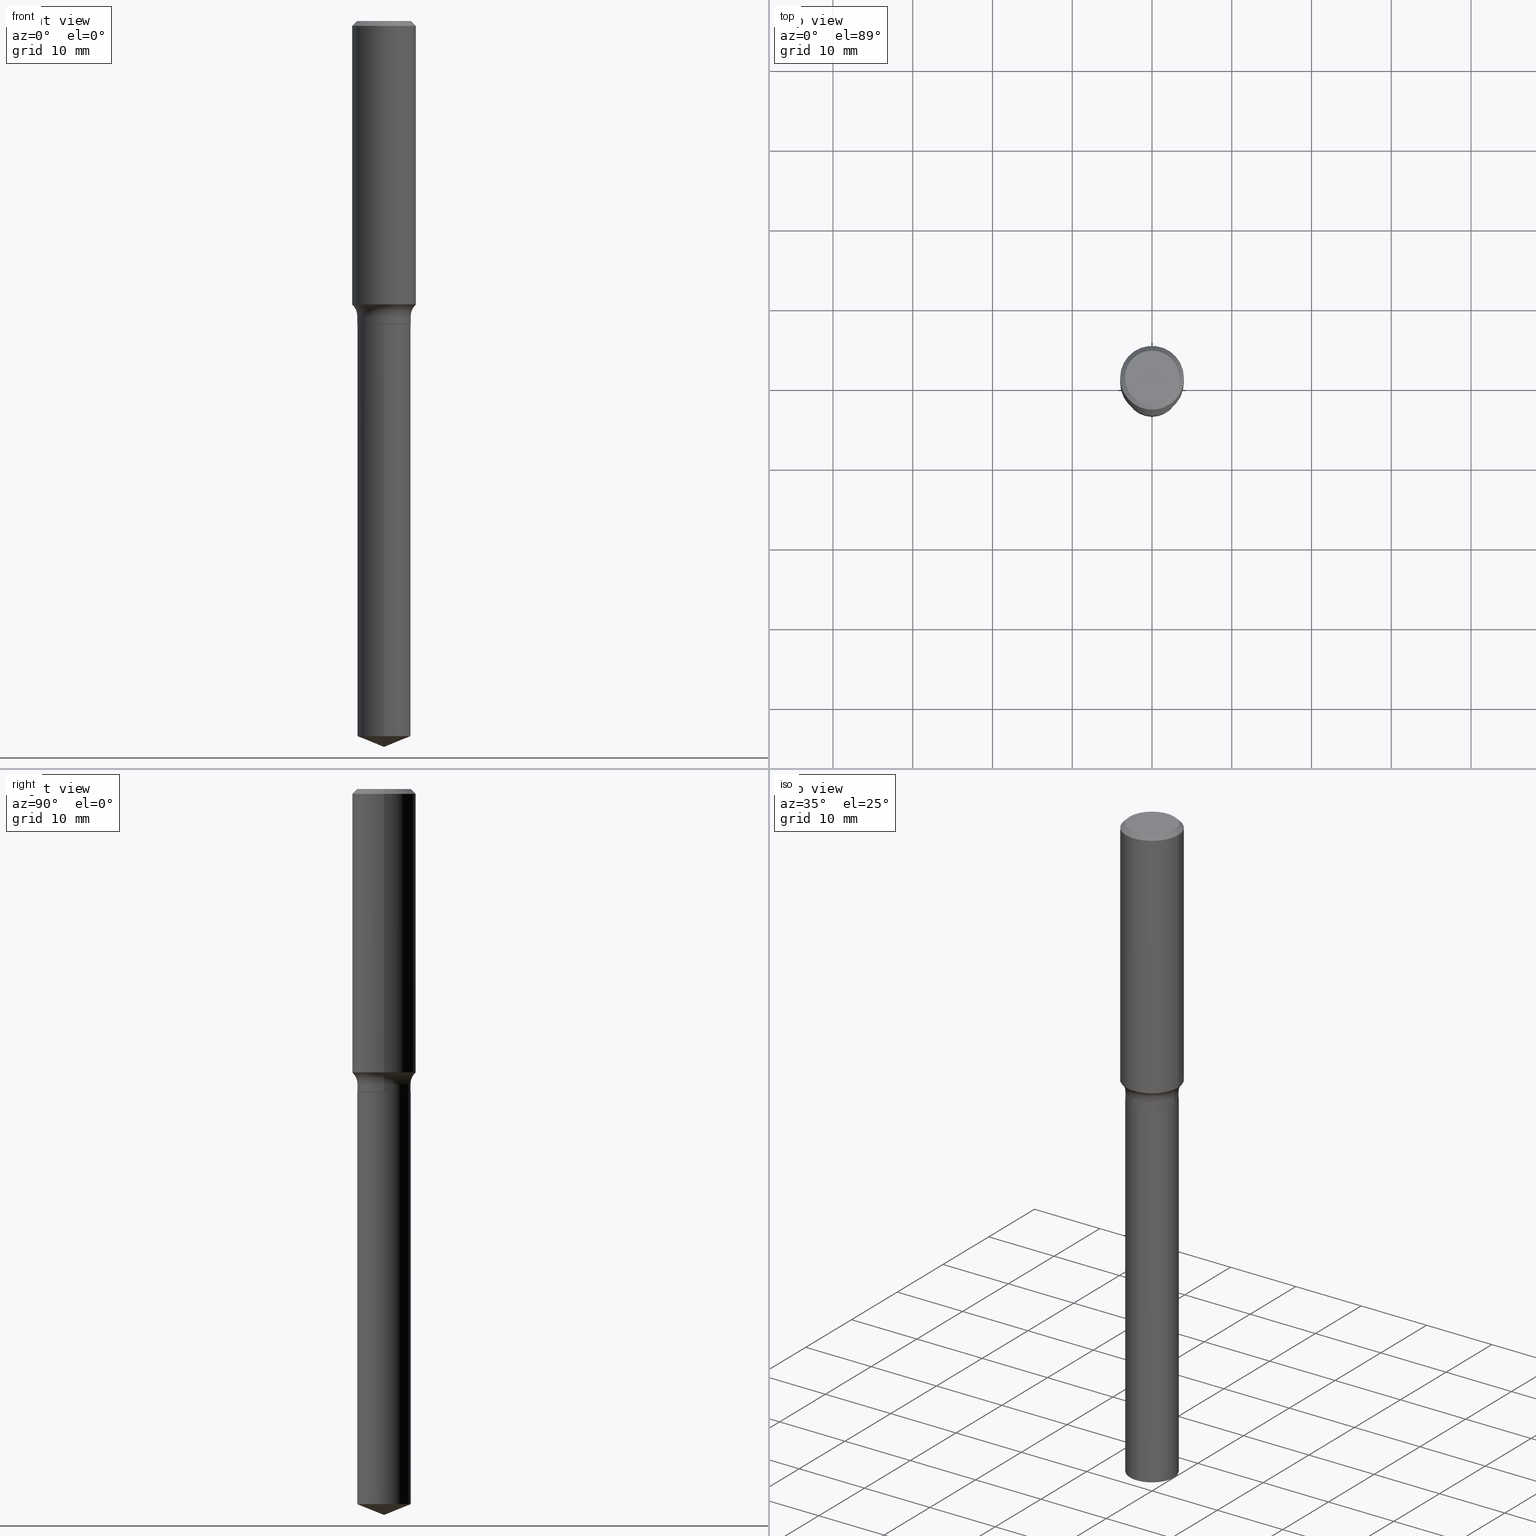
[diagram: canonical four-view strip — front | top / right | iso, engineering-drawing reading convention]
A machine part, canonical four-view strip (front | top / right | iso — engineering-drawing reading convention). The complete STEP part file that produces these views, byte-faithful:
ISO-10303-21;
HEADER;
FILE_DESCRIPTION (( 'STEP AP203' ),
    '1' );
FILE_NAME ('69260.STEP',
    '2024-04-19T17:33:28',
    ( '' ),
    ( '' ),
    'SwSTEP 2.0',
    'SolidWorks 2023',
    '' );
FILE_SCHEMA (( 'CONFIG_CONTROL_DESIGN' ));
ENDSEC;

DATA;
#1 = LINE ( 'NONE', #230, #196 ) ;
#2 = EDGE_LOOP ( 'NONE', ( #476, #255, #263, #100 ) ) ;
#3 = CARTESIAN_POINT ( 'NONE',  ( -1.002970424325032604E-46, 1.431975951230895391E-32, 4.101342130344482109E-18 ) ) ;
#4 = LINE ( 'NONE', #66, #317 ) ;
#5 = EDGE_CURVE ( 'NONE', #181, #278, #190, .T. ) ;
#6 = PRODUCT_RELATED_PRODUCT_CATEGORY ( 'detail', '', ( #173 ) ) ;
#7 = AXIS2_PLACEMENT_3D ( 'NONE', #121, #13, #77 ) ;
#8 = CARTESIAN_POINT ( 'NONE',  ( 8.631745927395342722E-29, -1.232398046609594419E-14, -3.529708940812342988 ) ) ;
#9 = ORIENTED_EDGE ( 'NONE', *, *, #369, .F. ) ;
#10 = PLANE ( 'NONE',  #336 ) ;
#11 = ORIENTED_EDGE ( 'NONE', *, *, #38, .T. ) ;
#12 = EDGE_CURVE ( 'NONE', #249, #84, #26, .T. ) ;
#13 = DIRECTION ( 'NONE',  ( -2.445468806185136597E-29, 3.491481338843145583E-15, 1.000000000000000000 ) ) ;
#14 = ORIENTED_EDGE ( 'NONE', *, *, #415, .T. ) ;
#15 = CIRCLE ( 'NONE', #366, 0.1318999999999999895 ) ;
#16 = FACE_OUTER_BOUND ( 'NONE', #45, .T. ) ;
#17 = DIRECTION ( 'NONE',  ( -0.7071067811864267805, 7.493145998869918709E-15, 0.7071067811866682540 ) ) ;
#18 = EDGE_CURVE ( 'NONE', #195, #181, #169, .T. ) ;
#19 = VERTEX_POINT ( 'NONE', #75 ) ;
#20 = APPROVAL ( #449, 'UNSPECIFIED' ) ;
#21 = DATE_AND_TIME ( #296, #197 ) ;
#22 = CIRCLE ( 'NONE', #223, 0.1318999999999999895 ) ;
#23 = EDGE_CURVE ( 'NONE', #19, #435, #86, .T. ) ;
#24 = EDGE_LOOP ( 'NONE', ( #305, #235, #355, #127 ) ) ;
#25 = SECURITY_CLASSIFICATION_LEVEL ( 'unclassified' ) ;
#26 = CIRCLE ( 'NONE', #231, 0.1313999999999999890 ) ;
#27 = LOCAL_TIME ( 13, 33, 28.00000000000000000, #484 ) ;
#28 = APPROVAL_STATUS ( 'not_yet_approved' ) ;
#29 = ORIENTED_EDGE ( 'NONE', *, *, #12, .T. ) ;
#30 = ORIENTED_EDGE ( 'NONE', *, *, #93, .T. ) ;
#31 = CARTESIAN_POINT ( 'NONE',  ( -0.1318999999999999895, -4.216744309865738217E-15, -1.456400000000000139 ) ) ;
#32 = PLANE ( 'NONE',  #490 ) ;
#33 = DIRECTION ( 'NONE',  ( -2.445468806185136597E-29, 3.491481338843145583E-15, 1.000000000000000000 ) ) ;
#34 = DIRECTION ( 'NONE',  ( 1.000000000000000000, -6.982962677686269077E-15, 0.000000000000000000 ) ) ;
#35 = DIRECTION ( 'NONE',  ( 1.000000000000000000, -6.982962677686266711E-15, 4.876170806578254279E-29 ) ) ;
#36 = CARTESIAN_POINT ( 'NONE',  ( 0.1575000000000001676, -5.983080965653135818E-15, -1.398622495727142923 ) ) ;
#37 = ORIENTED_EDGE ( 'NONE', *, *, #430, .T. ) ;
#38 = EDGE_CURVE ( 'NONE', #418, #290, #119, .T. ) ;
#39 = DIRECTION ( 'NONE',  ( -2.445468806185136597E-29, 3.491481338843145583E-15, 1.000000000000000000 ) ) ;
#40 = DIRECTION ( 'NONE',  ( -2.445445601509706497E-29, 3.491514569259089389E-15, 1.000000000000000000 ) ) ;
#41 = CYLINDRICAL_SURFACE ( 'NONE', #57, 0.1318999999999999895 ) ;
#42 = EDGE_LOOP ( 'NONE', ( #485, #162 ) ) ;
#43 = CIRCLE ( 'NONE', #244, 0.1575000000000001676 ) ;
#44 = CARTESIAN_POINT ( 'NONE',  ( 5.777420054612421980E-31, -8.248624663016985234E-17, -0.02362500000000015282 ) ) ;
#45 = EDGE_LOOP ( 'NONE', ( #432, #14, #280 ) ) ;
#46 = DIRECTION ( 'NONE',  ( 2.438088387897960049E-29, -3.491481338843145188E-15, -1.000000000000000000 ) ) ;
#47 = LINE ( 'NONE', #49, #97 ) ;
#48 = UNCERTAINTY_MEASURE_WITH_UNIT (LENGTH_MEASURE( 1.000000000000000082E-05 ), #167, 'distance_accuracy_value', 'NONE');
#49 = CARTESIAN_POINT ( 'NONE',  ( -0.1313999999999999890, -4.290999520656112771E-15, -1.496400000000000396 ) ) ;
#50 = CONICAL_SURFACE ( 'NONE', #347, 0.1313999999999999890, 0.7853981633972775267 ) ;
#51 = EDGE_LOOP ( 'NONE', ( #115, #372, #155, #391 ) ) ;
#52 = CARTESIAN_POINT ( 'NONE',  ( -0.1318999999999999895, -4.216744309865738217E-15, -1.495900000000000230 ) ) ;
#53 = ADVANCED_FACE ( 'NONE', ( #358 ), #423, .T. ) ;
#54 =( NAMED_UNIT ( * ) PLANE_ANGLE_UNIT ( ) SI_UNIT ( $, .RADIAN. ) );
#55 = PERSON_AND_ORGANIZATION_ROLE ( 'classification_officer' ) ;
#56 = CARTESIAN_POINT ( 'NONE',  ( -0.1575000000000000844, 1.119104808822158392E-15, -7.747322767151481189E-30 ) ) ;
#57 = AXIS2_PLACEMENT_3D ( 'NONE', #390, #39, #460 ) ;
#58 = APPROVAL_PERSON_ORGANIZATION ( #452, #370, #101 ) ;
#59 = DIRECTION ( 'NONE',  ( -6.982962677686266711E-15, -1.000000000000000000, 3.491481338843145583E-15 ) ) ;
#60 = PERSON_AND_ORGANIZATION_ROLE ( 'creator' ) ;
#61 = ORIENTED_EDGE ( 'NONE', *, *, #282, .T. ) ;
#62 = PERSON_AND_ORGANIZATION ( #456, #109 ) ;
#63 = PERSON_AND_ORGANIZATION_ROLE ( 'design_supplier' ) ;
#64 = DIRECTION ( 'NONE',  ( 1.000000000000000000, -6.982962677686265922E-15, 0.000000000000000000 ) ) ;
#65 = AXIS2_PLACEMENT_3D ( 'NONE', #8, #332, #281 ) ;
#66 = CARTESIAN_POINT ( 'NONE',  ( 8.762031590209278139E-29, -1.251009670165531742E-14, -3.583000000000000185 ) ) ;
#67 = DIRECTION ( 'NONE',  ( 1.000000000000000000, -6.982962677686268288E-15, 0.000000000000000000 ) ) ;
#68 = CARTESIAN_POINT ( 'NONE',  ( 0.2099000000000000032, -6.550717287937504794E-15, -1.456400000000000139 ) ) ;
#69 = ADVANCED_FACE ( 'NONE', ( #315 ), #462, .T. ) ;
#70 = CARTESIAN_POINT ( 'NONE',  ( 0.1575000000000000011, -1.182302868365756679E-15, -0.02362500000000015282 ) ) ;
#71 = ADVANCED_FACE ( 'NONE', ( #219 ), #242, .F. ) ;
#72 = DIRECTION ( 'NONE',  ( 1.000000000000000000, -6.982962677686265922E-15, 4.876176775795935793E-29 ) ) ;
#73 = EDGE_LOOP ( 'NONE', ( #325, #320, #82, #465 ) ) ;
#74 = FACE_OUTER_BOUND ( 'NONE', #160, .T. ) ;
#75 = CARTESIAN_POINT ( 'NONE',  ( 0.1338749999999999940, -1.040731925365424925E-15, 4.101342130351390035E-18 ) ) ;
#76 = ORIENTED_EDGE ( 'NONE', *, *, #216, .T. ) ;
#77 = DIRECTION ( 'NONE',  ( 1.000000000000000000, -6.982962677686269077E-15, 0.000000000000000000 ) ) ;
#78 = EDGE_CURVE ( 'NONE', #278, #150, #489, .T. ) ;
#79 = ORIENTED_EDGE ( 'NONE', *, *, #430, .F. ) ;
#80 = AXIS2_PLACEMENT_3D ( 'NONE', #326, #126, #439 ) ;
#81 = CARTESIAN_POINT ( 'NONE',  ( 0.1318999999999999895, -6.143959711962281051E-15, -1.495900000000000230 ) ) ;
#82 = ORIENTED_EDGE ( 'NONE', *, *, #105, .T. ) ;
#83 = FACE_OUTER_BOUND ( 'NONE', #137, .T. ) ;
#84 = VERTEX_POINT ( 'NONE', #345 ) ;
#85 = ADVANCED_FACE ( 'NONE', ( #268 ), #32, .F. ) ;
#86 = CIRCLE ( 'NONE', #159, 0.1338749999999999940 ) ;
#87 = DIRECTION ( 'NONE',  ( 1.000000000000000000, -6.982962677686267499E-15, 4.876176775795936353E-29 ) ) ;
#88 = AXIS2_PLACEMENT_3D ( 'NONE', #436, #466, #201 ) ;
#89 = CC_DESIGN_PERSON_AND_ORGANIZATION_ASSIGNMENT ( #62, #63, ( #328 ) ) ;
#90 = AXIS2_PLACEMENT_3D ( 'NONE', #480, #172, #342 ) ;
#91 = CARTESIAN_POINT ( 'NONE',  ( 8.762031590209278139E-29, -1.251009670165531742E-14, -3.583000000000000185 ) ) ;
#92 = APPROVAL_DATE_TIME ( #209, #258 ) ;
#93 = EDGE_CURVE ( 'NONE', #290, #444, #194, .T. ) ;
#94 = PERSON_AND_ORGANIZATION_ROLE ( 'design_owner' ) ;
#95 = CLOSED_SHELL ( 'NONE', ( #450, #458, #53, #437, #193, #262, #71, #386, #138, #291, #129, #314 ) ) ;
#96 = DIRECTION ( 'NONE',  ( 1.000000000000000000, 0.000000000000000000, 0.000000000000000000 ) ) ;
#97 = VECTOR ( 'NONE', #17, 39.37007874015748143 ) ;
#98 = CIRCLE ( 'NONE', #90, 0.07800000000000002764 ) ;
#99 = PRODUCT_DEFINITION_SHAPE ( 'NONE', 'NONE',  #416 ) ;
#100 = ORIENTED_EDGE ( 'NONE', *, *, #275, .T. ) ;
#101 = APPROVAL_ROLE ( '' ) ;
#102 = PERSON_AND_ORGANIZATION_ROLE ( 'creator' ) ;
#103 = DIRECTION ( 'NONE',  ( -2.445468806185136597E-29, 3.491481338843145583E-15, 1.000000000000000000 ) ) ;
#104 = ORIENTED_EDGE ( 'NONE', *, *, #236, .T. ) ;
#105 = EDGE_CURVE ( 'NONE', #181, #124, #477, .T. ) ;
#106 = CARTESIAN_POINT ( 'NONE',  ( 5.777420054612421980E-31, -8.248624663016985234E-17, -0.02362500000000015282 ) ) ;
#107 = ORIENTED_EDGE ( 'NONE', *, *, #236, .F. ) ;
#108 = AXIS2_PLACEMENT_3D ( 'NONE', #198, #250, #161 ) ;
#109 = ORGANIZATION ( 'UNSPECIFIED', 'UNSPECIFIED', '' ) ;
#110 = CARTESIAN_POINT ( 'NONE',  ( 3.561580769328033122E-29, -5.084993421891157543E-15, -1.456400000000000139 ) ) ;
#111 = ADVANCED_BREP_SHAPE_REPRESENTATION ( '69260', ( #344, #340, #187 ), #409 ) ;
#112 = DIRECTION ( 'NONE',  ( 1.000000000000000000, -6.982962677686265922E-15, 0.000000000000000000 ) ) ;
#113 = EDGE_CURVE ( 'NONE', #226, #124, #15, .T. ) ;
#114 = DIRECTION ( 'NONE',  ( 1.000000000000000000, -6.982962677686267499E-15, 0.000000000000000000 ) ) ;
#115 = ORIENTED_EDGE ( 'NONE', *, *, #175, .T. ) ;
#116 = VECTOR ( 'NONE', #335, 39.37007874015748143 ) ;
#117 = ORIENTED_EDGE ( 'NONE', *, *, #369, .T. ) ;
#118 = CYLINDRICAL_SURFACE ( 'NONE', #434, 0.1318999999999999895 ) ;
#119 = LINE ( 'NONE', #151, #220 ) ;
#120 = ORIENTED_EDGE ( 'NONE', *, *, #5, .T. ) ;
#121 = CARTESIAN_POINT ( 'NONE',  ( 3.658176787172346501E-29, -5.222906934775461847E-15, -1.495900000000000230 ) ) ;
#122 = ORIENTED_EDGE ( 'NONE', *, *, #374, .T. ) ;
#123 = DIRECTION ( 'NONE',  ( 1.000000000000000000, -6.982962677686266711E-15, 4.876170806578254279E-29 ) ) ;
#124 = VERTEX_POINT ( 'NONE', #420 ) ;
#125 = AXIS2_PLACEMENT_3D ( 'NONE', #267, #189, #271 ) ;
#126 = DIRECTION ( 'NONE',  ( -2.445468806185136597E-29, 3.491481338843145583E-15, 1.000000000000000000 ) ) ;
#127 = ORIENTED_EDGE ( 'NONE', *, *, #400, .F. ) ;
#128 = DIRECTION ( 'NONE',  ( -2.445445601509706497E-29, 3.491514569259089389E-15, 1.000000000000000000 ) ) ;
#129 = ADVANCED_FACE ( 'NONE', ( #228 ), #357, .F. ) ;
#130 = CC_DESIGN_DATE_AND_TIME_ASSIGNMENT ( #380, #180, ( #410 ) ) ;
#131 = CARTESIAN_POINT ( 'NONE',  ( -5.014852121625163022E-47, 7.159879756154476955E-33, 2.050671065172241055E-18 ) ) ;
#132 = ORIENTED_EDGE ( 'NONE', *, *, #23, .T. ) ;
#133 = DIRECTION ( 'NONE',  ( -2.445445601509706497E-29, 3.491514569259089389E-15, 1.000000000000000000 ) ) ;
#134 = AXIS2_PLACEMENT_3D ( 'NONE', #378, #103, #303 ) ;
#135 = LINE ( 'NONE', #211, #253 ) ;
#136 = CIRCLE ( 'NONE', #408, 0.1318999999999999895 ) ;
#137 = EDGE_LOOP ( 'NONE', ( #428, #247, #120, #402 ) ) ;
#138 = ADVANCED_FACE ( 'NONE', ( #359 ), #177, .T. ) ;
#139 = PERSON_AND_ORGANIZATION ( #456, #109 ) ;
#140 = CARTESIAN_POINT ( 'NONE',  ( 9.372058684676580562E-16, 0.1318999999999876382, -3.529708940812343432 ) ) ;
#141 = MECHANICAL_CONTEXT ( 'NONE', #376, 'mechanical' ) ;
#142 = CONICAL_SURFACE ( 'NONE', #299, 97.44436430772807967, 1.186823891356143745 ) ;
#143 = CC_DESIGN_APPROVAL ( #370, ( #328 ) ) ;
#144 = COORDINATED_UNIVERSAL_TIME_OFFSET ( 5, 0, .BEHIND. ) ;
#145 = EDGE_CURVE ( 'NONE', #474, #418, #4, .T. ) ;
#146 = APPROVAL_DATE_TIME ( #174, #370 ) ;
#147 = DIMENSIONAL_EXPONENTS ( 1.000000000000000000, 0.000000000000000000, 0.000000000000000000, 0.000000000000000000, 0.000000000000000000, 0.000000000000000000, 0.000000000000000000 ) ;
#148 = DIRECTION ( 'NONE',  ( -1.000000000000000000, 6.982962677686265922E-15, 0.000000000000000000 ) ) ;
#149 = CARTESIAN_POINT ( 'NONE',  ( 3.659399521575438742E-29, -5.224652675444883351E-15, -1.496400000000000174 ) ) ;
#150 = VERTEX_POINT ( 'NONE', #154 ) ;
#151 = CARTESIAN_POINT ( 'NONE',  ( -9.210527771867817330E-16, -0.1319000000000052075, -1.496399999999999730 ) ) ;
#152 = CONICAL_SURFACE ( 'NONE', #108, 0.1313999999999999890, 0.7853981633972775267 ) ;
#153 = DIRECTION ( 'NONE',  ( -2.445445601509706497E-29, 3.491514569259089389E-15, 1.000000000000000000 ) ) ;
#154 = CARTESIAN_POINT ( 'NONE',  ( -0.1575000000000000011, -1.363770486451699292E-15, -0.02362500000000015282 ) ) ;
#155 = ORIENTED_EDGE ( 'NONE', *, *, #168, .F. ) ;
#156 = CARTESIAN_POINT ( 'NONE',  ( 0.000000000000000000, 0.000000000000000000, 0.000000000000000000 ) ) ;
#157 = CARTESIAN_POINT ( 'NONE',  ( 3.658176787172346501E-29, -5.222906934775461847E-15, -1.495900000000000230 ) ) ;
#158 = DIRECTION ( 'NONE',  ( -2.445445601509706497E-29, 3.491514569259089389E-15, 1.000000000000000000 ) ) ;
#159 = AXIS2_PLACEMENT_3D ( 'NONE', #3, #488, #35 ) ;
#160 = EDGE_LOOP ( 'NONE', ( #448, #37, #338, #229 ) ) ;
#161 = DIRECTION ( 'NONE',  ( 1.000000000000000000, -6.982962677686265133E-15, 0.000000000000000000 ) ) ;
#162 = ORIENTED_EDGE ( 'NONE', *, *, #333, .F. ) ;
#163 = FACE_OUTER_BOUND ( 'NONE', #207, .T. ) ;
#164 = CARTESIAN_POINT ( 'NONE',  ( 3.561580769328033122E-29, -5.084993421891157543E-15, -1.456400000000000139 ) ) ;
#165 = DIRECTION ( 'NONE',  ( -2.445468806185136597E-29, 3.491481338843145583E-15, 1.000000000000000000 ) ) ;
#166 = DIRECTION ( 'NONE',  ( 1.000000000000000000, -6.982962677686265922E-15, 4.883557194083112340E-29 ) ) ;
#167 =( CONVERSION_BASED_UNIT ( 'INCH', #337 ) LENGTH_UNIT ( ) NAMED_UNIT ( #147 ) );
#168 = EDGE_CURVE ( 'NONE', #124, #226, #136, .T. ) ;
#169 = CIRCLE ( 'NONE', #387, 0.1575000000000001676 ) ;
#170 =( LENGTH_UNIT ( ) NAMED_UNIT ( * ) SI_UNIT ( $, .METRE. ) );
#171 = APPROVAL_DATE_TIME ( #21, #20 ) ;
#172 = DIRECTION ( 'NONE',  ( 7.105427357601001859E-15, 1.000000000000000000, -3.491481338843145583E-15 ) ) ;
#173 = PRODUCT ( '69260', '69260', '', ( #141 ) ) ;
#174 = DATE_AND_TIME ( #257, #285 ) ;
#175 = EDGE_CURVE ( 'NONE', #398, #367, #472, .T. ) ;
#176 = DIRECTION ( 'NONE',  ( 0.000000000000000000, 0.000000000000000000, 1.000000000000000000 ) ) ;
#177 = CONICAL_SURFACE ( 'NONE', #362, 0.1575000000000000011, 0.7853981633974447263 ) ;
#178 = DIRECTION ( 'NONE',  ( 1.000000000000000000, -6.982962677686267499E-15, 0.000000000000000000 ) ) ;
#179 = CC_DESIGN_PERSON_AND_ORGANIZATION_ASSIGNMENT ( #218, #102, ( #328 ) ) ;
#180 = DATE_TIME_ROLE ( 'classification_date' ) ;
#181 = VERTEX_POINT ( 'NONE', #36 ) ;
#182 = CARTESIAN_POINT ( 'NONE',  ( 3.659399521575438742E-29, -5.224652675444883351E-15, -1.496400000000000174 ) ) ;
#183 = DIRECTION ( 'NONE',  ( 1.000000000000000000, -6.982962677686265133E-15, 0.000000000000000000 ) ) ;
#184 = DIRECTION ( 'NONE',  ( -6.982962677686265922E-15, -1.000000000000000000, 3.498761904101839785E-15 ) ) ;
#185 = AXIS2_PLACEMENT_3D ( 'NONE', #156, #191, #318 ) ;
#186 = AXIS2_PLACEMENT_3D ( 'NONE', #421, #272, #72 ) ;
#187 = AXIS2_PLACEMENT_3D ( 'NONE', #377, #176, #96 ) ;
#188 = DIRECTION ( 'NONE',  ( 2.445468806185136597E-29, -3.491481338843145583E-15, -1.000000000000000000 ) ) ;
#189 = DIRECTION ( 'NONE',  ( -2.438088387897960049E-29, 3.491481338843145188E-15, 1.000000000000000000 ) ) ;
#190 = LINE ( 'NONE', #381, #210 ) ;
#191 = DIRECTION ( 'NONE',  ( -2.445468806185136597E-29, 3.491481338843145583E-15, 1.000000000000000000 ) ) ;
#192 = CARTESIAN_POINT ( 'NONE',  ( 5.777420054612421980E-31, -8.248624663016985234E-17, -0.02362500000000015282 ) ) ;
#193 = ADVANCED_FACE ( 'NONE', ( #237 ), #316, .T. ) ;
#194 = CIRCLE ( 'NONE', #283, 0.1318999999999999895 ) ;
#195 = VERTEX_POINT ( 'NONE', #225 ) ;
#196 = VECTOR ( 'NONE', #277, 39.37007874015748143 ) ;
#197 = LOCAL_TIME ( 13, 33, 28.00000000000000000, #406 ) ;
#198 = CARTESIAN_POINT ( 'NONE',  ( 3.659399521575439863E-29, -5.224652675444884140E-15, -1.496400000000000396 ) ) ;
#199 = DIRECTION ( 'NONE',  ( -0.7071067811865450192, 2.468850131082230634E-15, -0.7071067811865500152 ) ) ;
#200 = ADVANCED_FACE ( 'NONE', ( #350 ), #142, .T. ) ;
#201 = DIRECTION ( 'NONE',  ( -6.982962677686265922E-15, -1.000000000000000000, 4.142301734138382417E-15 ) ) ;
#202 = EDGE_LOOP ( 'NONE', ( #9, #404, #233, #79 ) ) ;
#203 = VECTOR ( 'NONE', #199, 39.37007874015748143 ) ;
#204 = DIRECTION ( 'NONE',  ( -2.445468806185136597E-29, 3.491481338843145583E-15, 1.000000000000000000 ) ) ;
#205 = ORIENTED_EDGE ( 'NONE', *, *, #113, .T. ) ;
#206 = DIRECTION ( 'NONE',  ( -2.445468806185136597E-29, 3.491481338843145583E-15, 1.000000000000000000 ) ) ;
#207 = EDGE_LOOP ( 'NONE', ( #214, #132 ) ) ;
#208 = APPLICATION_PROTOCOL_DEFINITION ( 'international standard', 'config_control_design', 1994, #376 ) ;
#209 = DATE_AND_TIME ( #264, #440 ) ;
#210 = VECTOR ( 'NONE', #455, 39.37007874015748143 ) ;
#211 = CARTESIAN_POINT ( 'NONE',  ( 9.372058684676085552E-16, 0.1318999999999947437, -1.496400000000000841 ) ) ;
#212 = CIRCLE ( 'NONE', #252, 0.1575000000000000011 ) ;
#213 = APPROVAL_PERSON_ORGANIZATION ( #349, #20, #443 ) ;
#214 = ORIENTED_EDGE ( 'NONE', *, *, #356, .T. ) ;
#215 = CALENDAR_DATE ( 2024, 19, 4 ) ;
#216 = EDGE_CURVE ( 'NONE', #181, #195, #43, .T. ) ;
#217 = ORIENTED_EDGE ( 'NONE', *, *, #175, .F. ) ;
#218 = PERSON_AND_ORGANIZATION ( #456, #109 ) ;
#219 = FACE_OUTER_BOUND ( 'NONE', #73, .T. ) ;
#220 = VECTOR ( 'NONE', #40, 39.37007874015748143 ) ;
#221 = PERSON_AND_ORGANIZATION ( #456, #109 ) ;
#222 = ORIENTED_EDGE ( 'NONE', *, *, #93, .F. ) ;
#223 = AXIS2_PLACEMENT_3D ( 'NONE', #182, #153, #459 ) ;
#224 = AXIS2_PLACEMENT_3D ( 'NONE', #44, #295, #293 ) ;
#225 = CARTESIAN_POINT ( 'NONE',  ( -0.1575000000000001676, -3.764159535095387579E-15, -1.398622495727142923 ) ) ;
#226 = VERTEX_POINT ( 'NONE', #31 ) ;
#227 = ADVANCED_FACE ( 'NONE', ( #361 ), #118, .T. ) ;
#228 = FACE_OUTER_BOUND ( 'NONE', #42, .T. ) ;
#229 = ORIENTED_EDGE ( 'NONE', *, *, #113, .F. ) ;
#230 = CARTESIAN_POINT ( 'NONE',  ( 0.1575000000000000011, -1.163014681279185964E-15, -0.02362500000000015282 ) ) ;
#231 = AXIS2_PLACEMENT_3D ( 'NONE', #384, #33, #183 ) ;
#232 = VECTOR ( 'NONE', #254, 39.37007874015748143 ) ;
#233 = ORIENTED_EDGE ( 'NONE', *, *, #341, .T. ) ;
#234 = DIRECTION ( 'NONE',  ( -2.445468806185136877E-29, 3.491481338843145188E-15, 1.000000000000000000 ) ) ;
#235 = ORIENTED_EDGE ( 'NONE', *, *, #256, .T. ) ;
#236 = EDGE_CURVE ( 'NONE', #444, #290, #22, .T. ) ;
#237 = FACE_OUTER_BOUND ( 'NONE', #51, .T. ) ;
#238 = CC_DESIGN_DATE_AND_TIME_ASSIGNMENT ( #302, #407, ( #416 ) ) ;
#239 = ORIENTED_EDGE ( 'NONE', *, *, #78, .F. ) ;
#240 = ORIENTED_EDGE ( 'NONE', *, *, #341, .F. ) ;
#241 = FACE_OUTER_BOUND ( 'NONE', #313, .T. ) ;
#242 = TOROIDAL_SURFACE ( 'NONE', #134, 0.2099000000000000032, 0.07800000000000004152 ) ;
#243 = EDGE_LOOP ( 'NONE', ( #329, #441, #300 ) ) ;
#244 = AXIS2_PLACEMENT_3D ( 'NONE', #311, #306, #114 ) ;
#245 = CARTESIAN_POINT ( 'NONE',  ( -0.1575000000000000011, 1.017330375105417098E-15, -0.02362500000000015282 ) ) ;
#246 = EDGE_CURVE ( 'NONE', #398, #124, #352, .T. ) ;
#247 = ORIENTED_EDGE ( 'NONE', *, *, #18, .T. ) ;
#248 = CARTESIAN_POINT ( 'NONE',  ( 0.000000000000000000, 0.000000000000000000, 0.000000000000000000 ) ) ;
#249 = VERTEX_POINT ( 'NONE', #392 ) ;
#250 = DIRECTION ( 'NONE',  ( -2.445468806185136597E-29, 3.491481338843145583E-15, 1.000000000000000000 ) ) ;
#251 = ORIENTED_EDGE ( 'NONE', *, *, #5, .F. ) ;
#252 = AXIS2_PLACEMENT_3D ( 'NONE', #192, #388, #112 ) ;
#253 = VECTOR ( 'NONE', #479, 39.37007874015748143 ) ;
#254 = DIRECTION ( 'NONE',  ( 0.7071067811864267805, -2.468850131080992517E-15, 0.7071067811866682540 ) ) ;
#255 = ORIENTED_EDGE ( 'NONE', *, *, #356, .F. ) ;
#256 = EDGE_CURVE ( 'NONE', #19, #278, #1, .T. ) ;
#257 = CALENDAR_DATE ( 2024, 19, 4 ) ;
#258 = APPROVAL ( #28, 'UNSPECIFIED' ) ;
#259 = AXIS2_PLACEMENT_3D ( 'NONE', #68, #59, #67 ) ;
#260 = AXIS2_PLACEMENT_3D ( 'NONE', #433, #128, #438 ) ;
#261 = APPLICATION_PROTOCOL_DEFINITION ( 'international standard', 'config_control_design', 1994, #310 ) ;
#262 = ADVANCED_FACE ( 'NONE', ( #74 ), #41, .T. ) ;
#263 = ORIENTED_EDGE ( 'NONE', *, *, #400, .T. ) ;
#264 = CALENDAR_DATE ( 2024, 19, 4 ) ;
#265 = APPROVAL_STATUS ( 'not_yet_approved' ) ;
#266 = CARTESIAN_POINT ( 'NONE',  ( 5.777420054612421980E-31, -8.248624663016985234E-17, -0.02362500000000015282 ) ) ;
#267 = CARTESIAN_POINT ( 'NONE',  ( 1.486955544557679650E-29, -8.335716098366654427E-15, -1.496400000000000396 ) ) ;
#268 = FACE_OUTER_BOUND ( 'NONE', #393, .T. ) ;
#269 = CIRCLE ( 'NONE', #327, 0.1338749999999999940 ) ;
#270 = DIRECTION ( 'NONE',  ( 1.000000000000000000, -6.982962677686269077E-15, 0.000000000000000000 ) ) ;
#271 = DIRECTION ( 'NONE',  ( 1.000000000000000000, -6.982962677686265922E-15, 4.876176775795935793E-29 ) ) ;
#272 = DIRECTION ( 'NONE',  ( -2.445468806185136597E-29, 3.491481338843145583E-15, 1.000000000000000000 ) ) ;
#273 = EDGE_LOOP ( 'NONE', ( #61, #322, #222, #382 ) ) ;
#274 = AXIS2_PLACEMENT_3D ( 'NONE', #164, #204, #166 ) ;
#275 = EDGE_CURVE ( 'NONE', #150, #278, #212, .T. ) ;
#276 = CC_DESIGN_PERSON_AND_ORGANIZATION_ASSIGNMENT ( #414, #60, ( #416 ) ) ;
#277 = DIRECTION ( 'NONE',  ( 0.7071067811865450192, -7.319954787623246579E-15, -0.7071067811865500152 ) ) ;
#278 = VERTEX_POINT ( 'NONE', #70 ) ;
#279 = CARTESIAN_POINT ( 'NONE',  ( -0.1338749999999999940, 9.760872517903331886E-16, 4.101342130337800673E-18 ) ) ;
#280 = ORIENTED_EDGE ( 'NONE', *, *, #282, .F. ) ;
#281 = DIRECTION ( 'NONE',  ( -6.982962677686265922E-15, -1.000000000000000000, 4.142301734138382417E-15 ) ) ;
#282 = EDGE_CURVE ( 'NONE', #418, #467, #375, .T. ) ;
#283 = AXIS2_PLACEMENT_3D ( 'NONE', #323, #133, #442 ) ;
#284 = VECTOR ( 'NONE', #431, 39.37007874015748854 ) ;
#285 = LOCAL_TIME ( 13, 33, 28.00000000000000000, #144 ) ;
#286 = LINE ( 'NONE', #399, #232 ) ;
#287 = CARTESIAN_POINT ( 'NONE',  ( 8.762101646129704419E-29, -1.250999724966648130E-14, -3.583000000000000185 ) ) ;
#288 = DESIGN_CONTEXT ( 'detailed design', #310, 'design' ) ;
#289 = CARTESIAN_POINT ( 'NONE',  ( -9.210527771867320348E-16, -0.1319000000000122852, -3.529708940812342099 ) ) ;
#290 = VERTEX_POINT ( 'NONE', #468 ) ;
#291 = ADVANCED_FACE ( 'NONE', ( #163 ), #10, .F. ) ;
#292 = AXIS2_PLACEMENT_3D ( 'NONE', #157, #464, #34 ) ;
#293 = DIRECTION ( 'NONE',  ( -1.000000000000000000, 6.982962677686265922E-15, 0.000000000000000000 ) ) ;
#294 = EDGE_LOOP ( 'NONE', ( #446, #122, #11, #107 ) ) ;
#295 = DIRECTION ( 'NONE',  ( 2.445468806185136597E-29, -3.491481338843145583E-15, -1.000000000000000000 ) ) ;
#296 = CALENDAR_DATE ( 2024, 19, 4 ) ;
#297 = LINE ( 'NONE', #56, #116 ) ;
#298 = ADVANCED_FACE ( 'NONE', ( #16 ), #309, .T. ) ;
#299 = AXIS2_PLACEMENT_3D ( 'NONE', #383, #487, #184 ) ;
#300 = ORIENTED_EDGE ( 'NONE', *, *, #374, .F. ) ;
#301 = COORDINATED_UNIVERSAL_TIME_OFFSET ( 5, 0, .BEHIND. ) ;
#302 = DATE_AND_TIME ( #215, #27 ) ;
#303 = DIRECTION ( 'NONE',  ( 1.000000000000000000, -6.982962677686265922E-15, 4.883557194083112340E-29 ) ) ;
#304 = DIRECTION ( 'NONE',  ( -2.445468806185136597E-29, 3.491481338843145583E-15, 1.000000000000000000 ) ) ;
#305 = ORIENTED_EDGE ( 'NONE', *, *, #23, .F. ) ;
#306 = DIRECTION ( 'NONE',  ( -2.445468806185136597E-29, 3.491481338843145583E-15, 1.000000000000000000 ) ) ;
#307 = DIRECTION ( 'NONE',  ( 2.445445601509706217E-29, -3.491514569259089389E-15, -1.000000000000000000 ) ) ;
#308 = DIRECTION ( 'NONE',  ( -2.445468806185136597E-29, 3.491481338843145583E-15, 1.000000000000000000 ) ) ;
#309 = CONICAL_SURFACE ( 'NONE', #260, 97.44436430772807967, 1.186823891356143745 ) ;
#310 = APPLICATION_CONTEXT ( 'configuration controlled 3d designs of mechanical parts and assemblies' ) ;
#311 = CARTESIAN_POINT ( 'NONE',  ( 3.420287684929532829E-29, -4.883264343917545972E-15, -1.398622495727142923 ) ) ;
#312 = DIRECTION ( 'NONE',  ( -6.982962677686265922E-15, -1.000000000000000000, 4.142301734138382417E-15 ) ) ;
#313 = EDGE_LOOP ( 'NONE', ( #29, #117, #217, #240 ) ) ;
#314 = ADVANCED_FACE ( 'NONE', ( #470 ), #152, .T. ) ;
#315 = FACE_OUTER_BOUND ( 'NONE', #273, .T. ) ;
#316 = CYLINDRICAL_SURFACE ( 'NONE', #186, 0.1318999999999999895 ) ;
#317 = VECTOR ( 'NONE', #429, 39.37007874015748854 ) ;
#318 = DIRECTION ( 'NONE',  ( 1.000000000000000000, -6.982962677686267499E-15, 4.876176775795936353E-29 ) ) ;
#319 = LOCAL_TIME ( 13, 33, 28.00000000000000000, #348 ) ;
#320 = ORIENTED_EDGE ( 'NONE', *, *, #216, .F. ) ;
#321 = LINE ( 'NONE', #245, #203 ) ;
#322 = ORIENTED_EDGE ( 'NONE', *, *, #486, .T. ) ;
#323 = CARTESIAN_POINT ( 'NONE',  ( 3.659399521575438742E-29, -5.224652675444883351E-15, -1.496400000000000174 ) ) ;
#324 = CYLINDRICAL_SURFACE ( 'NONE', #426, 0.1575000000000000844 ) ;
#325 = ORIENTED_EDGE ( 'NONE', *, *, #481, .F. ) ;
#326 = CARTESIAN_POINT ( 'NONE',  ( 3.659399521575439863E-29, -5.224652675444884140E-15, -1.496400000000000396 ) ) ;
#327 = AXIS2_PLACEMENT_3D ( 'NONE', #365, #363, #123 ) ;
#328 = PRODUCT_DEFINITION_FORMATION_WITH_SPECIFIED_SOURCE ( 'ANY', '', #173, .NOT_KNOWN. ) ;
#329 = ORIENTED_EDGE ( 'NONE', *, *, #415, .F. ) ;
#330 = DIRECTION ( 'NONE',  ( -2.445468806185136877E-29, 3.491481338843145188E-15, 1.000000000000000000 ) ) ;
#331 = ORIENTED_EDGE ( 'NONE', *, *, #471, .T. ) ;
#332 = DIRECTION ( 'NONE',  ( -2.445445601509706497E-29, 3.491514569259089389E-15, 1.000000000000000000 ) ) ;
#333 = EDGE_CURVE ( 'NONE', #84, #249, #395, .T. ) ;
#334 = CC_DESIGN_PERSON_AND_ORGANIZATION_ASSIGNMENT ( #343, #94, ( #173 ) ) ;
#335 = DIRECTION ( 'NONE',  ( -2.445468806185136877E-29, 3.491481338843145188E-15, 1.000000000000000000 ) ) ;
#336 = AXIS2_PLACEMENT_3D ( 'NONE', #131, #46, #473 ) ;
#337 = LENGTH_MEASURE_WITH_UNIT ( LENGTH_MEASURE( 0.02539999999999999897 ), #170 );
#338 = ORIENTED_EDGE ( 'NONE', *, *, #246, .T. ) ;
#339 = SHAPE_DEFINITION_REPRESENTATION ( #99, #111 ) ;
#340 = MANIFOLD_SOLID_BREP ( 'Body-Move/Copy2[2]', #95 ) ;
#341 = EDGE_CURVE ( 'NONE', #249, #398, #286, .T. ) ;
#342 = DIRECTION ( 'NONE',  ( -1.000000000000000000, 7.105427357601001859E-15, 0.000000000000000000 ) ) ;
#343 = PERSON_AND_ORGANIZATION ( #456, #109 ) ;
#344 = MANIFOLD_SOLID_BREP ( 'Body-Move/Copy2[1]', #346 ) ;
#345 = CARTESIAN_POINT ( 'NONE',  ( -0.1313999999999999890, -4.288350293482001570E-15, -1.496400000000000396 ) ) ;
#346 = CLOSED_SHELL ( 'NONE', ( #69, #298, #200, #227, #85 ) ) ;
#347 = AXIS2_PLACEMENT_3D ( 'NONE', #394, #206, #401 ) ;
#348 = COORDINATED_UNIVERSAL_TIME_OFFSET ( 5, 0, .BEHIND. ) ;
#349 = PERSON_AND_ORGANIZATION ( #456, #109 ) ;
#350 = FACE_OUTER_BOUND ( 'NONE', #243, .T. ) ;
#351 = CARTESIAN_POINT ( 'NONE',  ( 3.420287684929532829E-29, -4.883264343917545972E-15, -1.398622495727142923 ) ) ;
#352 = LINE ( 'NONE', #492, #463 ) ;
#353 = CIRCLE ( 'NONE', #7, 0.1318999999999999895 ) ;
#354 = APPROVAL_PERSON_ORGANIZATION ( #139, #258, #412 ) ;
#355 = ORIENTED_EDGE ( 'NONE', *, *, #78, .T. ) ;
#356 = EDGE_CURVE ( 'NONE', #435, #19, #269, .T. ) ;
#357 = PLANE ( 'NONE',  #125 ) ;
#358 = FACE_OUTER_BOUND ( 'NONE', #478, .T. ) ;
#359 = FACE_OUTER_BOUND ( 'NONE', #2, .T. ) ;
#360 = CARTESIAN_POINT ( 'NONE',  ( 3.659399521575438742E-29, -5.224652675444883351E-15, -1.496400000000000174 ) ) ;
#361 = FACE_OUTER_BOUND ( 'NONE', #294, .T. ) ;
#362 = AXIS2_PLACEMENT_3D ( 'NONE', #106, #188, #148 ) ;
#363 = DIRECTION ( 'NONE',  ( -2.445468806185136597E-29, 3.491481338843145583E-15, 1.000000000000000000 ) ) ;
#364 = CARTESIAN_POINT ( 'NONE',  ( -0.1318999999999999895, 9.372058684675720704E-16, -6.488075384046219970E-30 ) ) ;
#365 = CARTESIAN_POINT ( 'NONE',  ( -1.002970424325032604E-46, 1.431975951230895391E-32, 4.101342130344482109E-18 ) ) ;
#366 = AXIS2_PLACEMENT_3D ( 'NONE', #110, #385, #454 ) ;
#367 = VERTEX_POINT ( 'NONE', #52 ) ;
#368 = FACE_OUTER_BOUND ( 'NONE', #425, .T. ) ;
#369 = EDGE_CURVE ( 'NONE', #84, #367, #47, .T. ) ;
#370 = APPROVAL ( #265, 'UNSPECIFIED' ) ;
#371 = FACE_OUTER_BOUND ( 'NONE', #24, .T. ) ;
#372 = ORIENTED_EDGE ( 'NONE', *, *, #405, .T. ) ;
#373 = CALENDAR_DATE ( 2024, 19, 4 ) ;
#374 = EDGE_CURVE ( 'NONE', #467, #418, #491, .T. ) ;
#375 = CIRCLE ( 'NONE', #65, 0.1318999999999999895 ) ;
#376 = APPLICATION_CONTEXT ( 'configuration controlled 3d designs of mechanical parts and assemblies' ) ;
#377 = CARTESIAN_POINT ( 'NONE',  ( 0.000000000000000000, 0.000000000000000000, 0.000000000000000000 ) ) ;
#378 = CARTESIAN_POINT ( 'NONE',  ( 3.561580769328033122E-29, -5.084993421891157543E-15, -1.456400000000000139 ) ) ;
#379 = TOROIDAL_SURFACE ( 'NONE', #274, 0.2099000000000000032, 0.07800000000000004152 ) ;
#380 = DATE_AND_TIME ( #373, #319 ) ;
#381 = CARTESIAN_POINT ( 'NONE',  ( 0.1575000000000000844, -1.099816621735587677E-15, 7.679978421878603638E-30 ) ) ;
#382 = ORIENTED_EDGE ( 'NONE', *, *, #38, .F. ) ;
#383 = CARTESIAN_POINT ( 'NONE',  ( -8.751531957252333368E-28, 1.249511565384764858E-13, 35.78707874015748303 ) ) ;
#384 = CARTESIAN_POINT ( 'NONE',  ( 3.659399521575439863E-29, -5.224652675444884140E-15, -1.496400000000000396 ) ) ;
#385 = DIRECTION ( 'NONE',  ( -2.445468806185136597E-29, 3.491481338843145583E-15, 1.000000000000000000 ) ) ;
#386 = ADVANCED_FACE ( 'NONE', ( #83 ), #324, .T. ) ;
#387 = AXIS2_PLACEMENT_3D ( 'NONE', #351, #308, #178 ) ;
#388 = DIRECTION ( 'NONE',  ( -2.445468806185136597E-29, 3.491481338843145583E-15, 1.000000000000000000 ) ) ;
#389 = CONICAL_SURFACE ( 'NONE', #224, 0.1575000000000000011, 0.7853981633974447263 ) ;
#390 = CARTESIAN_POINT ( 'NONE',  ( 0.000000000000000000, 0.000000000000000000, 0.000000000000000000 ) ) ;
#391 = ORIENTED_EDGE ( 'NONE', *, *, #246, .F. ) ;
#392 = CARTESIAN_POINT ( 'NONE',  ( 0.1313999999999999890, -6.142213971292859548E-15, -1.496400000000000396 ) ) ;
#393 = EDGE_LOOP ( 'NONE', ( #30, #104 ) ) ;
#394 = CARTESIAN_POINT ( 'NONE',  ( 3.659399521575439863E-29, -5.224652675444884140E-15, -1.496400000000000396 ) ) ;
#395 = CIRCLE ( 'NONE', #80, 0.1313999999999999890 ) ;
#396 = CC_DESIGN_APPROVAL ( #20, ( #410 ) ) ;
#397 = LINE ( 'NONE', #364, #482 ) ;
#398 = VERTEX_POINT ( 'NONE', #81 ) ;
#399 = CARTESIAN_POINT ( 'NONE',  ( 0.1313999999999999890, -6.142213971292859548E-15, -1.496400000000000396 ) ) ;
#400 = EDGE_CURVE ( 'NONE', #435, #150, #321, .T. ) ;
#401 = DIRECTION ( 'NONE',  ( 1.000000000000000000, -6.982962677686265133E-15, 0.000000000000000000 ) ) ;
#402 = ORIENTED_EDGE ( 'NONE', *, *, #275, .F. ) ;
#403 = CARTESIAN_POINT ( 'NONE',  ( 9.372058684676584506E-16, 0.1318999999999947437, -1.496400000000000841 ) ) ;
#404 = ORIENTED_EDGE ( 'NONE', *, *, #333, .T. ) ;
#405 = EDGE_CURVE ( 'NONE', #367, #226, #397, .T. ) ;
#406 = COORDINATED_UNIVERSAL_TIME_OFFSET ( 5, 0, .BEHIND. ) ;
#407 = DATE_TIME_ROLE ( 'creation_date' ) ;
#408 = AXIS2_PLACEMENT_3D ( 'NONE', #461, #304, #270 ) ;
#409 =( GEOMETRIC_REPRESENTATION_CONTEXT ( 3 ) GLOBAL_UNCERTAINTY_ASSIGNED_CONTEXT ( ( #48 ) ) GLOBAL_UNIT_ASSIGNED_CONTEXT ( ( #167, #54, #445 ) ) REPRESENTATION_CONTEXT ( 'NONE', 'WORKASPACE' ) );
#410 = SECURITY_CLASSIFICATION ( '', '', #25 ) ;
#411 = ORIENTED_EDGE ( 'NONE', *, *, #105, .F. ) ;
#412 = APPROVAL_ROLE ( '' ) ;
#413 = ORIENTED_EDGE ( 'NONE', *, *, #481, .T. ) ;
#414 = PERSON_AND_ORGANIZATION ( #456, #109 ) ;
#415 = EDGE_CURVE ( 'NONE', #474, #467, #475, .T. ) ;
#416 = PRODUCT_DEFINITION ( 'UNKNOWN', '', #328, #288 ) ;
#417 = DIRECTION ( 'NONE',  ( -2.445468806185136597E-29, 3.491481338843145583E-15, 1.000000000000000000 ) ) ;
#418 = VERTEX_POINT ( 'NONE', #289 ) ;
#419 = AXIS2_PLACEMENT_3D ( 'NONE', #266, #417, #64 ) ;
#420 = CARTESIAN_POINT ( 'NONE',  ( 0.1318999999999999895, -6.006046199077976747E-15, -1.456400000000000139 ) ) ;
#421 = CARTESIAN_POINT ( 'NONE',  ( 0.000000000000000000, 0.000000000000000000, 0.000000000000000000 ) ) ;
#422 = DIRECTION ( 'NONE',  ( 6.982962677686265922E-15, 1.000000000000000000, -3.491514569259089389E-15 ) ) ;
#423 = CYLINDRICAL_SURFACE ( 'NONE', #185, 0.1575000000000000844 ) ;
#424 = CARTESIAN_POINT ( 'NONE',  ( 3.659399521575438742E-29, -5.224652675444883351E-15, -1.496400000000000174 ) ) ;
#425 = EDGE_LOOP ( 'NONE', ( #469, #413, #205, #411 ) ) ;
#426 = AXIS2_PLACEMENT_3D ( 'NONE', #248, #165, #87 ) ;
#427 = DIRECTION ( 'NONE',  ( -2.445445601509706497E-29, 3.491514569259089389E-15, 1.000000000000000000 ) ) ;
#428 = ORIENTED_EDGE ( 'NONE', *, *, #471, .F. ) ;
#429 = DIRECTION ( 'NONE',  ( -6.474490251793174685E-15, -0.9271838545667858700, 0.3746065934159155675 ) ) ;
#430 = EDGE_CURVE ( 'NONE', #367, #398, #353, .T. ) ;
#431 = DIRECTION ( 'NONE',  ( 6.588037525764788135E-15, 0.9271838545667884235, 0.3746065934159091282 ) ) ;
#432 = ORIENTED_EDGE ( 'NONE', *, *, #145, .F. ) ;
#433 = CARTESIAN_POINT ( 'NONE',  ( -8.751531957252333368E-28, 1.249511565384764858E-13, 35.78707874015748303 ) ) ;
#434 = AXIS2_PLACEMENT_3D ( 'NONE', #424, #427, #312 ) ;
#435 = VERTEX_POINT ( 'NONE', #279 ) ;
#436 = CARTESIAN_POINT ( 'NONE',  ( 8.631745927395342722E-29, -1.232398046609594419E-14, -3.529708940812342988 ) ) ;
#437 = ADVANCED_FACE ( 'NONE', ( #368 ), #379, .F. ) ;
#438 = DIRECTION ( 'NONE',  ( -6.982962677686265922E-15, -1.000000000000000000, 3.498761904101839785E-15 ) ) ;
#439 = DIRECTION ( 'NONE',  ( 1.000000000000000000, -6.982962677686265133E-15, 0.000000000000000000 ) ) ;
#440 = LOCAL_TIME ( 13, 33, 28.00000000000000000, #301 ) ;
#441 = ORIENTED_EDGE ( 'NONE', *, *, #145, .T. ) ;
#442 = DIRECTION ( 'NONE',  ( -6.982962677686265922E-15, -1.000000000000000000, 4.142301734138382417E-15 ) ) ;
#443 = APPROVAL_ROLE ( '' ) ;
#444 = VERTEX_POINT ( 'NONE', #403 ) ;
#445 =( NAMED_UNIT ( * ) SI_UNIT ( $, .STERADIAN. ) SOLID_ANGLE_UNIT ( ) );
#446 = ORIENTED_EDGE ( 'NONE', *, *, #486, .F. ) ;
#447 = CC_DESIGN_SECURITY_CLASSIFICATION ( #410, ( #328 ) ) ;
#448 = ORIENTED_EDGE ( 'NONE', *, *, #405, .F. ) ;
#449 = APPROVAL_STATUS ( 'not_yet_approved' ) ;
#450 = ADVANCED_FACE ( 'NONE', ( #241 ), #50, .T. ) ;
#451 = CC_DESIGN_PERSON_AND_ORGANIZATION_ASSIGNMENT ( #221, #55, ( #410 ) ) ;
#452 = PERSON_AND_ORGANIZATION ( #456, #109 ) ;
#453 = DIRECTION ( 'NONE',  ( -6.982962677686265922E-15, -1.000000000000000000, 4.142301734138382417E-15 ) ) ;
#454 = DIRECTION ( 'NONE',  ( 1.000000000000000000, -6.982962677686269077E-15, 0.000000000000000000 ) ) ;
#455 = DIRECTION ( 'NONE',  ( -2.445468806185136877E-29, 3.491481338843145188E-15, 1.000000000000000000 ) ) ;
#456 = PERSON ( 'UNSPECIFIED', 'UNSPECIFIED', 'UNSPECIFIED', ('UNSPECIFIED'), ('UNSPECIFIED'), ('UNSPECIFIED') ) ;
#457 = AXIS2_PLACEMENT_3D ( 'NONE', #360, #158, #453 ) ;
#458 = ADVANCED_FACE ( 'NONE', ( #371 ), #389, .T. ) ;
#459 = DIRECTION ( 'NONE',  ( -6.982962677686265922E-15, -1.000000000000000000, 4.142301734138382417E-15 ) ) ;
#460 = DIRECTION ( 'NONE',  ( 1.000000000000000000, -6.982962677686265922E-15, 4.876176775795935793E-29 ) ) ;
#461 = CARTESIAN_POINT ( 'NONE',  ( 3.561580769328033122E-29, -5.084993421891157543E-15, -1.456400000000000139 ) ) ;
#462 = CYLINDRICAL_SURFACE ( 'NONE', #457, 0.1318999999999999895 ) ;
#463 = VECTOR ( 'NONE', #234, 39.37007874015748143 ) ;
#464 = DIRECTION ( 'NONE',  ( -2.445468806185136597E-29, 3.491481338843145583E-15, 1.000000000000000000 ) ) ;
#465 = ORIENTED_EDGE ( 'NONE', *, *, #168, .T. ) ;
#466 = DIRECTION ( 'NONE',  ( -2.445445601509706497E-29, 3.491514569259089389E-15, 1.000000000000000000 ) ) ;
#467 = VERTEX_POINT ( 'NONE', #140 ) ;
#468 = CARTESIAN_POINT ( 'NONE',  ( -9.210527771867817330E-16, -0.1319000000000052075, -1.496399999999999730 ) ) ;
#469 = ORIENTED_EDGE ( 'NONE', *, *, #18, .F. ) ;
#470 = FACE_OUTER_BOUND ( 'NONE', #202, .T. ) ;
#471 = EDGE_CURVE ( 'NONE', #195, #150, #297, .T. ) ;
#472 = CIRCLE ( 'NONE', #292, 0.1318999999999999895 ) ;
#473 = DIRECTION ( 'NONE',  ( -1.000000000000000000, 6.982962677686265922E-15, -4.876176775795935793E-29 ) ) ;
#474 = VERTEX_POINT ( 'NONE', #91 ) ;
#475 = LINE ( 'NONE', #287, #284 ) ;
#476 = ORIENTED_EDGE ( 'NONE', *, *, #256, .F. ) ;
#477 = CIRCLE ( 'NONE', #259, 0.07800000000000002764 ) ;
#478 = EDGE_LOOP ( 'NONE', ( #76, #331, #239, #251 ) ) ;
#479 = DIRECTION ( 'NONE',  ( -2.445445601509706497E-29, 3.491514569259089389E-15, 1.000000000000000000 ) ) ;
#480 = CARTESIAN_POINT ( 'NONE',  ( -0.2099000000000000032, -3.593564219530707428E-15, -1.456400000000000139 ) ) ;
#481 = EDGE_CURVE ( 'NONE', #195, #226, #98, .T. ) ;
#482 = VECTOR ( 'NONE', #330, 39.37007874015748143 ) ;
#483 = CC_DESIGN_APPROVAL ( #258, ( #416 ) ) ;
#484 = COORDINATED_UNIVERSAL_TIME_OFFSET ( 5, 0, .BEHIND. ) ;
#485 = ORIENTED_EDGE ( 'NONE', *, *, #12, .F. ) ;
#486 = EDGE_CURVE ( 'NONE', #467, #444, #135, .T. ) ;
#487 = DIRECTION ( 'NONE',  ( -2.445445601509706497E-29, 3.491514569259089389E-15, 1.000000000000000000 ) ) ;
#488 = DIRECTION ( 'NONE',  ( -2.445468806185136597E-29, 3.491481338843145583E-15, 1.000000000000000000 ) ) ;
#489 = CIRCLE ( 'NONE', #419, 0.1575000000000000011 ) ;
#490 = AXIS2_PLACEMENT_3D ( 'NONE', #149, #307, #422 ) ;
#491 = CIRCLE ( 'NONE', #88, 0.1318999999999999895 ) ;
#492 = CARTESIAN_POINT ( 'NONE',  ( 0.1318999999999999895, -9.210527771868184150E-16, 6.431677167274839042E-30 ) ) ;
ENDSEC;
END-ISO-10303-21;
